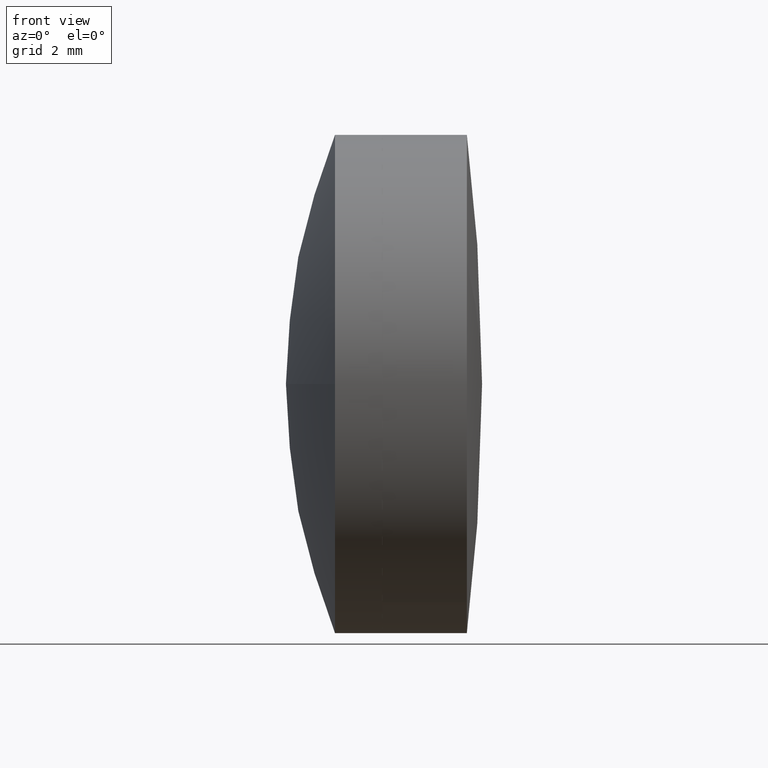
[diagram: clean part render]
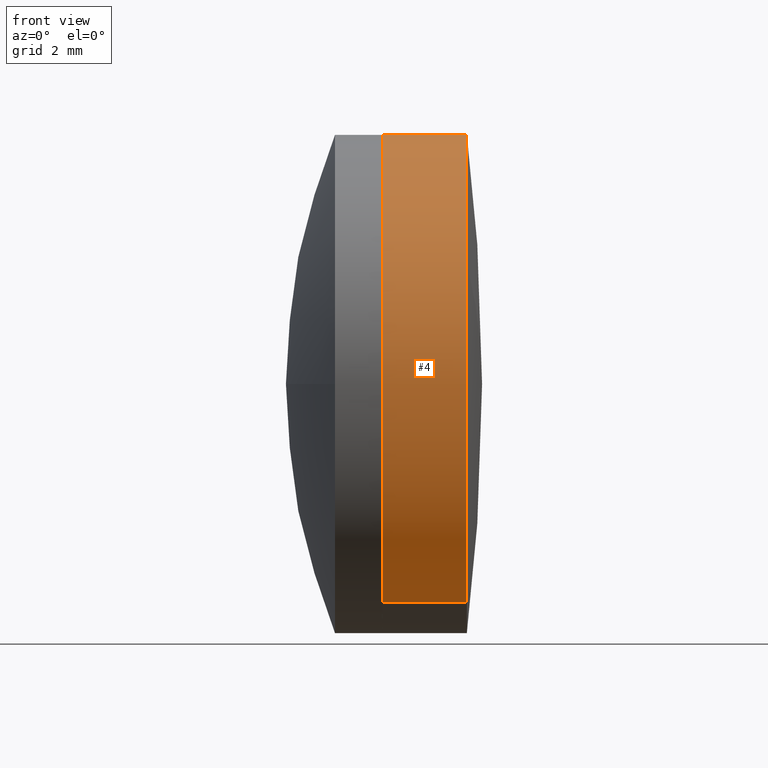
[diagram: same view with one face highlighted and labeled with its STEP entity id]
A machine part, front view. The second image highlights one B-rep face of the part: STEP entity #4.
In plain terms, the highlighted cylindrical surface (partial cylindrical patch) has radius 6.35 mm, axis along (-1, 0, 0).
Its self-contained STEP definition (entity closure, byte-faithful):
#4 = ADVANCED_FACE ( 'NONE', ( #252 ), #128, .T. ) ;
#17 = DIRECTION ( 'NONE',  ( -1.000000000000000000, 4.163336342344351818E-17, 1.110223024625159006E-16 ) ) ;
#31 = CARTESIAN_POINT ( 'NONE',  ( -63.20740906827801098, 8.303582838317279169, 3.071188968281062692 ) ) ;
#35 = AXIS2_PLACEMENT_3D ( 'NONE', #62, #224, #137 ) ;
#41 = CARTESIAN_POINT ( 'NONE',  ( -63.20740906827801098, 10.79029800029139530, -5.557904130255268527 ) ) ;
#42 = EDGE_CURVE ( 'NONE', #396, #382, #98, .T. ) ;
#62 = CARTESIAN_POINT ( 'NONE',  ( -63.81928922736018706, 13.86148696857249263, -6.484157397467768041E-15 ) ) ;
#70 = AXIS2_PLACEMENT_3D ( 'NONE', #424, #115, #84 ) ;
#72 = VERTEX_POINT ( 'NONE', #254 ) ;
#81 = CARTESIAN_POINT ( 'NONE',  ( -65.36452242713134808, 10.79029800029139530, -5.557904130255268527 ) ) ;
#83 = CIRCLE ( 'NONE', #330, 6.349999999999999645 ) ;
#84 = DIRECTION ( 'NONE',  ( 0.000000000000000000, 0.4836518060285191489, 0.8752604929535845457 ) ) ;
#88 = CARTESIAN_POINT ( 'NONE',  ( -63.81928922736018706, 10.79029800029139707, -5.557904130255267638 ) ) ;
#97 = EDGE_CURVE ( 'NONE', #382, #72, #179, .T. ) ;
#98 = LINE ( 'NONE', #88, #336 ) ;
#102 = AXIS2_PLACEMENT_3D ( 'NONE', #135, #197, #230 ) ;
#115 = DIRECTION ( 'NONE',  ( -1.000000000000000000, 4.163336342344351818E-17, 1.110223024625159006E-16 ) ) ;
#128 = CYLINDRICAL_SURFACE ( 'NONE', #35, 6.349999999999999645 ) ;
#135 = CARTESIAN_POINT ( 'NONE',  ( -65.36452242713134808, 13.86148696857249263, -6.312602049787652538E-15 ) ) ;
#137 = DIRECTION ( 'NONE',  ( 0.000000000000000000, 0.4836518060285191489, 0.8752604929535845457 ) ) ;
#159 = VERTEX_POINT ( 'NONE', #211 ) ;
#173 = EDGE_LOOP ( 'NONE', ( #235, #438, #440, #300, #319, #229 ) ) ;
#179 = CIRCLE ( 'NONE', #102, 6.349999999999999645 ) ;
#197 = DIRECTION ( 'NONE',  ( -1.000000000000000000, 4.163336342344351818E-17, 1.110223024625159006E-16 ) ) ;
#198 = VERTEX_POINT ( 'NONE', #303 ) ;
#205 = DIRECTION ( 'NONE',  ( -1.000000000000000000, 4.163336342344351818E-17, 1.110223024625159006E-16 ) ) ;
#207 = EDGE_CURVE ( 'NONE', #159, #198, #307, .T. ) ;
#209 = VERTEX_POINT ( 'NONE', #31 ) ;
#211 = CARTESIAN_POINT ( 'NONE',  ( -63.20740906827801098, 16.93267593685358818, 5.557904130255254316 ) ) ;
#220 = VECTOR ( 'NONE', #205, 1000.000000000000000 ) ;
#224 = DIRECTION ( 'NONE',  ( -1.000000000000000000, 4.163336342344351818E-17, 1.110223024625159006E-16 ) ) ;
#229 = ORIENTED_EDGE ( 'NONE', *, *, #97, .F. ) ;
#230 = DIRECTION ( 'NONE',  ( 0.000000000000000000, 0.4836518060285191489, 0.8752604929535845457 ) ) ;
#235 = ORIENTED_EDGE ( 'NONE', *, *, #42, .F. ) ;
#243 = EDGE_CURVE ( 'NONE', #209, #159, #83, .T. ) ;
#252 = FACE_OUTER_BOUND ( 'NONE', #173, .T. ) ;
#254 = CARTESIAN_POINT ( 'NONE',  ( -65.36452242713134808, 8.303582838317234760, 3.071188968281087117 ) ) ;
#300 = ORIENTED_EDGE ( 'NONE', *, *, #207, .T. ) ;
#303 = CARTESIAN_POINT ( 'NONE',  ( -65.36452242713134808, 16.93267593685358818, 5.557904130255255204 ) ) ;
#307 = LINE ( 'NONE', #417, #220 ) ;
#310 = DIRECTION ( 'NONE',  ( -1.000000000000000000, 4.163336342344351818E-17, 1.110223024625159006E-16 ) ) ;
#319 = ORIENTED_EDGE ( 'NONE', *, *, #333, .F. ) ;
#330 = AXIS2_PLACEMENT_3D ( 'NONE', #369, #441, #446 ) ;
#333 = EDGE_CURVE ( 'NONE', #72, #198, #345, .T. ) ;
#336 = VECTOR ( 'NONE', #17, 1000.000000000000000 ) ;
#345 = CIRCLE ( 'NONE', #372, 6.349999999999999645 ) ;
#351 = CARTESIAN_POINT ( 'NONE',  ( -65.36452242713134808, 13.86148696857249263, -6.312602049787652538E-15 ) ) ;
#369 = CARTESIAN_POINT ( 'NONE',  ( -63.20740906827801098, 13.86148696857249263, -6.552089741560200011E-15 ) ) ;
#372 = AXIS2_PLACEMENT_3D ( 'NONE', #351, #310, #426 ) ;
#378 = CIRCLE ( 'NONE', #70, 6.349999999999999645 ) ;
#382 = VERTEX_POINT ( 'NONE', #81 ) ;
#396 = VERTEX_POINT ( 'NONE', #41 ) ;
#417 = CARTESIAN_POINT ( 'NONE',  ( -63.81928922736018706, 16.93267593685358818, 5.557904130255255204 ) ) ;
#419 = EDGE_CURVE ( 'NONE', #396, #209, #378, .T. ) ;
#424 = CARTESIAN_POINT ( 'NONE',  ( -63.20740906827801098, 13.86148696857249263, -6.552089741560200011E-15 ) ) ;
#426 = DIRECTION ( 'NONE',  ( 0.000000000000000000, 0.4836518060285191489, 0.8752604929535845457 ) ) ;
#438 = ORIENTED_EDGE ( 'NONE', *, *, #419, .T. ) ;
#440 = ORIENTED_EDGE ( 'NONE', *, *, #243, .T. ) ;
#441 = DIRECTION ( 'NONE',  ( -1.000000000000000000, 4.163336342344351818E-17, 1.110223024625159006E-16 ) ) ;
#446 = DIRECTION ( 'NONE',  ( 0.000000000000000000, 0.4836518060285191489, 0.8752604929535845457 ) ) ;